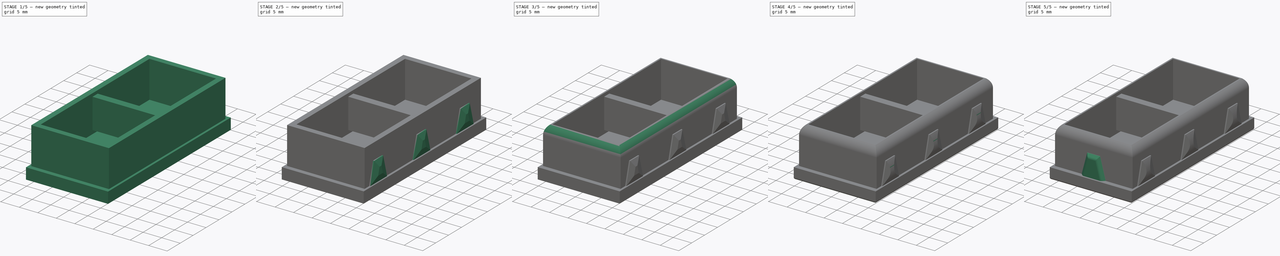
[diagram: build sequence overview — one tinted view per stage of 5, left to right]
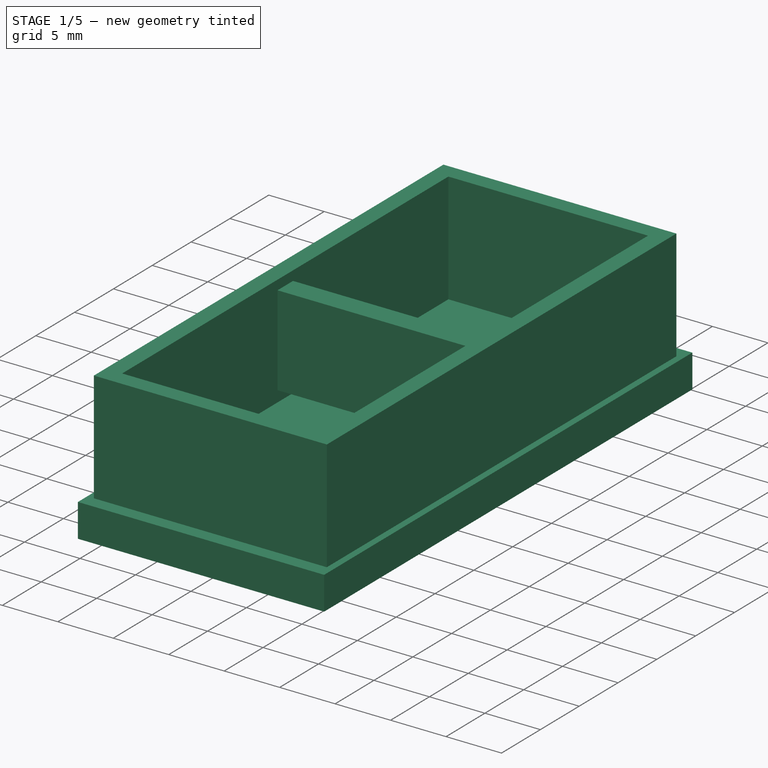
[diagram: stage 1 of 5 — iso view after this stage's code; geometry added in this stage tinted green]
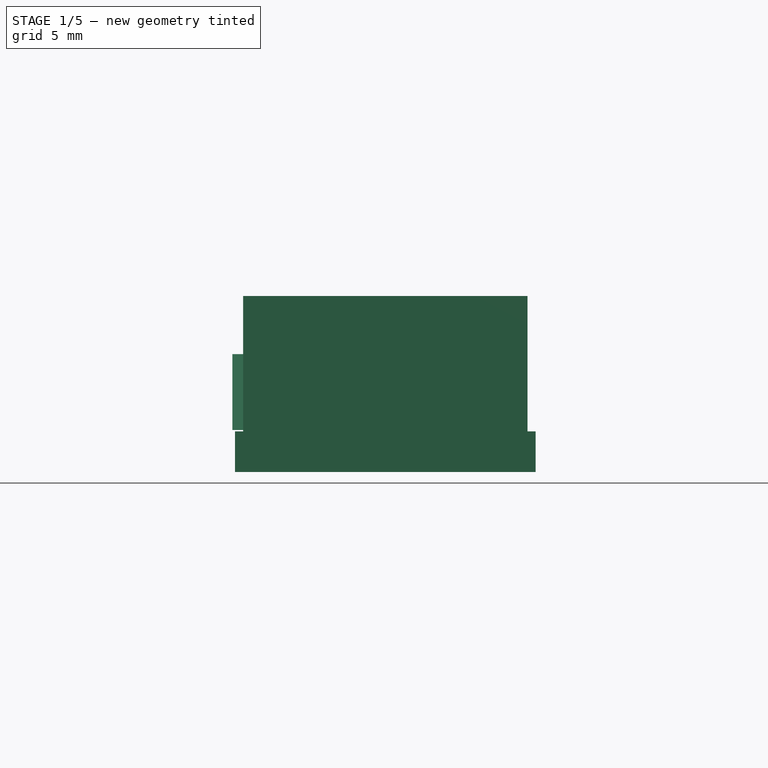
[diagram: stage 1 of 5 — front view after this stage's code; geometry added in this stage tinted green]
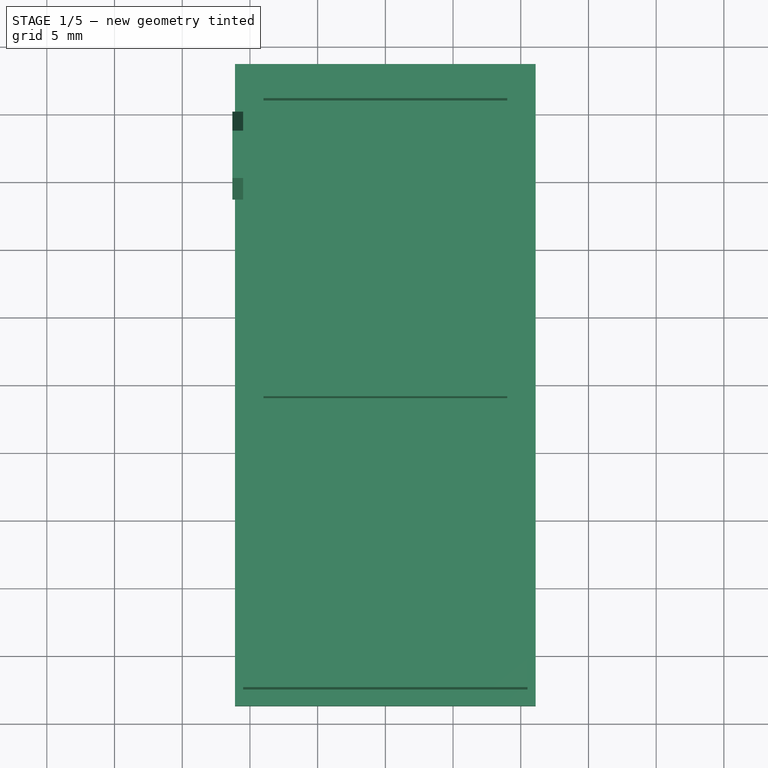
[diagram: stage 1 of 5 — top view after this stage's code; geometry added in this stage tinted green]
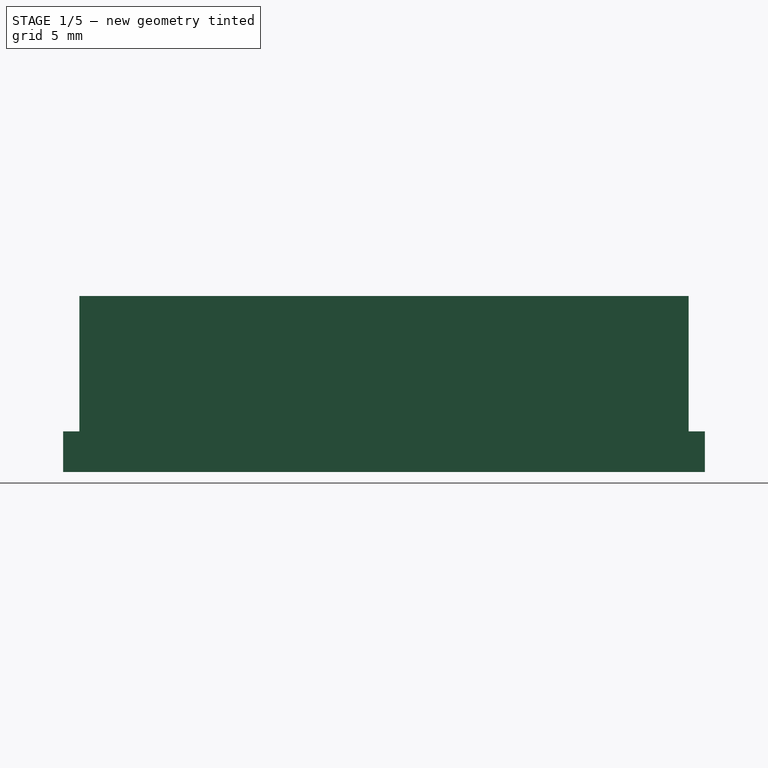
[diagram: stage 1 of 5 — right view after this stage's code; geometry added in this stage tinted green]
FCSTD DOCUMENT  (FreeCAD 0.19R24291 (Git))
Label: Kapak.stl
License: All rights reserved
LicenseURL: http://en.wikipedia.org/wiki/All_rights_reserved
objects: PartDesign::Fillet×8, Sketcher::SketchObject×7, PartDesign::Pad×7, PartDesign::Chamfer×5, PartDesign::LinearPattern×2, PartDesign::Body×1, App::Part×1
note: 50 computed .brp shape members not serialized (recipe doc carries the construction recipe); baked Part::Feature solids carry a one-line shape summary decoded from their .brp

FEATURE [Sketcher::SketchObject] Sketch
  FullyConstrained = false
  MapMode = 5
  Support = -> [XY_Plane001]
  sketch-geometry (8):
    g0: LineSegment StartX=-10.5 StartY=-22.5 StartZ=0 EndX=10.5 EndY=-22.5 EndZ=0
    g1: LineSegment StartX=10.5 StartY=-22.5 StartZ=0 EndX=10.5 EndY=22.5 EndZ=0
    g2: LineSegment StartX=10.5 StartY=22.5 StartZ=0 EndX=-10.5 EndY=22.5 EndZ=0
    g3: LineSegment StartX=-10.5 StartY=22.5 StartZ=0 EndX=-10.5 EndY=-22.5 EndZ=0
    g4: LineSegment StartX=-9 StartY=21 StartZ=0 EndX=-9 EndY=-21 EndZ=0
    g5: LineSegment StartX=-9 StartY=-21 StartZ=0 EndX=9 EndY=-21 EndZ=0
    g6: LineSegment StartX=9 StartY=-21 StartZ=0 EndX=9 EndY=21 EndZ=0
    g7: LineSegment StartX=9 StartY=21 StartZ=0 EndX=-9 EndY=21 EndZ=0
  constraints (23):
    c: Horizontal(g0)
    c: Coincident(g0,g1)
    c: Vertical(g1)
    c: Coincident(g1,g2)
    c: Horizontal(g2)
    c: Coincident(g2,g3)
    c: Coincident(g3,g0)
    c: Vertical(g3)
    c: Vertical(g4)
    c: Coincident(g4,g5)
    c: Coincident(g5,g6)
    c: Vertical(g6)
    c: Coincident(g6,g7)
    c: Coincident(g7,g4)
    c: DistanceY(g6,g1) = 1.5
    c: DistanceY(g-1,g2) = 22.5
    c: DistanceX(g2,g-1) = 10.5
    c: DistanceX(g-1,g1) = 10.5
    c: DistanceY(g0,g-1) = 22.5
    c: Horizontal(g7)
    c: Distance(g4,g3) = 1.5
    c: Distance(g4,g0) = 1.5
    c: Distance(g5,g1) = 1.5
FEATURE [PartDesign::Pad] Pad
  Direction = (1,1,1)
  Length = 10
  Length2 = 100
  Profile = -> Sketch
  Type = 0
FEATURE [Sketcher::SketchObject] Sketch001
  FullyConstrained = true
  MapMode = 5
  Support = -> [XY_Plane001]
  sketch-geometry (4):
    g0: LineSegment StartX=-11.1 StartY=23.7 StartZ=0 EndX=11.1 EndY=23.7 EndZ=0
    g1: LineSegment StartX=11.1 StartY=23.7 StartZ=0 EndX=11.1 EndY=-23.7 EndZ=0
    g2: LineSegment StartX=11.1 StartY=-23.7 StartZ=0 EndX=-11.1 EndY=-23.7 EndZ=0
    g3: LineSegment StartX=-11.1 StartY=-23.7 StartZ=0 EndX=-11.1 EndY=23.7 EndZ=0
  constraints (12):
    c: Coincident(g0,g1)
    c: Coincident(g1,g2)
    c: Coincident(g2,g3)
    c: Coincident(g3,g0)
    c: Horizontal(g0)
    c: Horizontal(g2)
    c: Vertical(g1)
    c: Vertical(g3)
    c: DistanceY(g1,g1) = 47.4
    c: DistanceX(g0,g0) = 22.2
    c: DistanceX(g0,g-1) = 11.1
    c: DistanceY(g-1,g0) = 23.7
FEATURE [PartDesign::Pad] Pad001
  BaseFeature = -> Pad
  Direction = (1,1,1)
  Length = 3
  Length2 = 100
  Profile = -> Sketch001
  Reversed = true
  Type = 0
FEATURE [Sketcher::SketchObject] Sketch002
  AttachmentOffset = pos=(0,0,21) rot=(0,0,1;0rad)
  ExternalGeometry = -> [Pad001]
  FullyConstrained = false
  MapMode = 5
  Placement = pos=(0,-3.6e-15,4.7e-15) rot=(1,0,0;1.5708rad)
  Support = -> [Pad001]
  sketch-geometry (4):
    g0: LineSegment StartX=-9.5 StartY=9.13793 StartZ=0 EndX=9.5 EndY=9.13793 EndZ=0
    g1: LineSegment StartX=9.5 StartY=9.13793 StartZ=0 EndX=9.5 EndY=1 EndZ=0
    g2: LineSegment StartX=9.5 StartY=1 StartZ=0 EndX=-9.5 EndY=1 EndZ=0
    g3: LineSegment StartX=-9.5 StartY=1 StartZ=0 EndX=-9.5 EndY=9.13793 EndZ=0
  constraints (11):
    c: Coincident(g0,g1)
    c: Coincident(g1,g2)
    c: Coincident(g2,g3)
    c: Coincident(g3,g0)
    c: Horizontal(g0)
    c: Horizontal(g2)
    c: Vertical(g1)
    c: Vertical(g3)
    c: Distance(g0,g-3) = 1
    c: Distance(g0,g-5) = 1
    c: Distance(g-1,g2) = 1
FEATURE [PartDesign::Pad] Pad002
  BaseFeature = -> Pad001
  Direction = (1,1,1)
  Length = 2
  Length2 = 100
  Midplane = true
  Profile = -> Sketch002
  Reversed = true
  Type = 0
FEATURE [Sketcher::SketchObject] Sketch003
  FullyConstrained = false
  MapMode = 5
  Placement = pos=(-10.5,0,0) rot=(0.57735,-0.57735,-0.57735;2.0944rad)
  Support = -> [Pad002]
  sketch-geometry (4):
    g0: LineSegment StartX=-20.1796 StartY=0.107333 StartZ=0 EndX=-18.6796 EndY=5.70541 EndZ=0
    g1: LineSegment StartX=-18.6796 StartY=5.70541 StartZ=0 EndX=-15.1796 EndY=5.70541 EndZ=0
    g2: LineSegment StartX=-15.1796 StartY=5.70541 StartZ=0 EndX=-13.6796 EndY=0.107333 EndZ=0
    g3: LineSegment StartX=-13.6796 StartY=0.107333 StartZ=0 EndX=-20.1796 EndY=0.107333 EndZ=0
  constraints (10):
    c: Coincident(g0,g1)
    c: Horizontal(g1)
    c: Coincident(g1,g2)
    c: Coincident(g2,g3)
    c: Coincident(g3,g0)
    c: Horizontal(g3)
    c: Angle(g2) = -1.309
    c: Angle(g0) = 1.309
    c: DistanceX(g3,g3) = 6.5
    c: DistanceX(g1,g1) = 3.5
FEATURE [PartDesign::Pad] Pad003
  BaseFeature = -> Pad002
  Direction = (1,1,1)
  Length = 0.8
  Length2 = 100
  Profile = -> Sketch003
  Type = 0
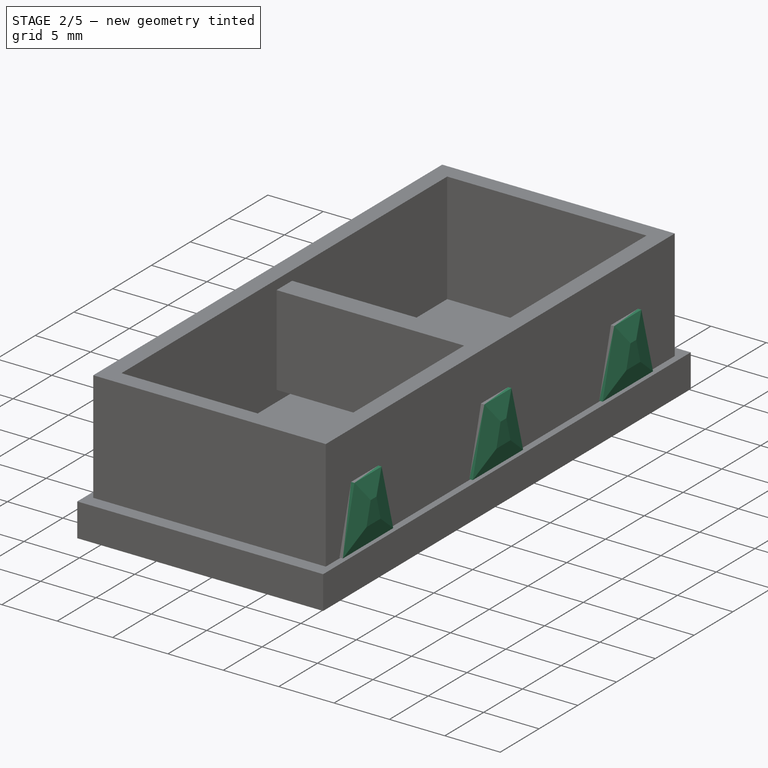
[diagram: stage 2 of 5 — iso view after this stage's code; geometry added in this stage tinted green]
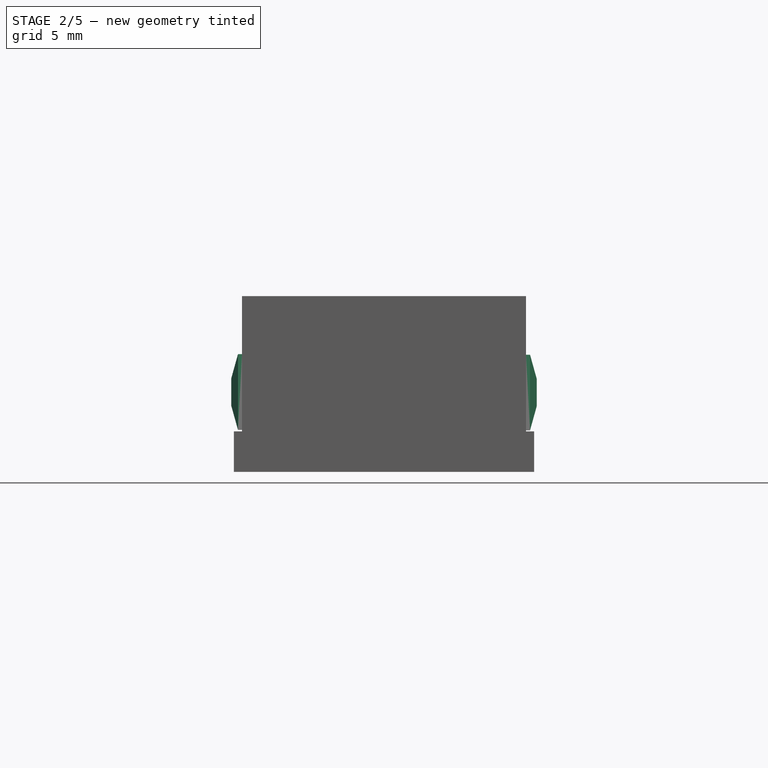
[diagram: stage 2 of 5 — front view after this stage's code; geometry added in this stage tinted green]
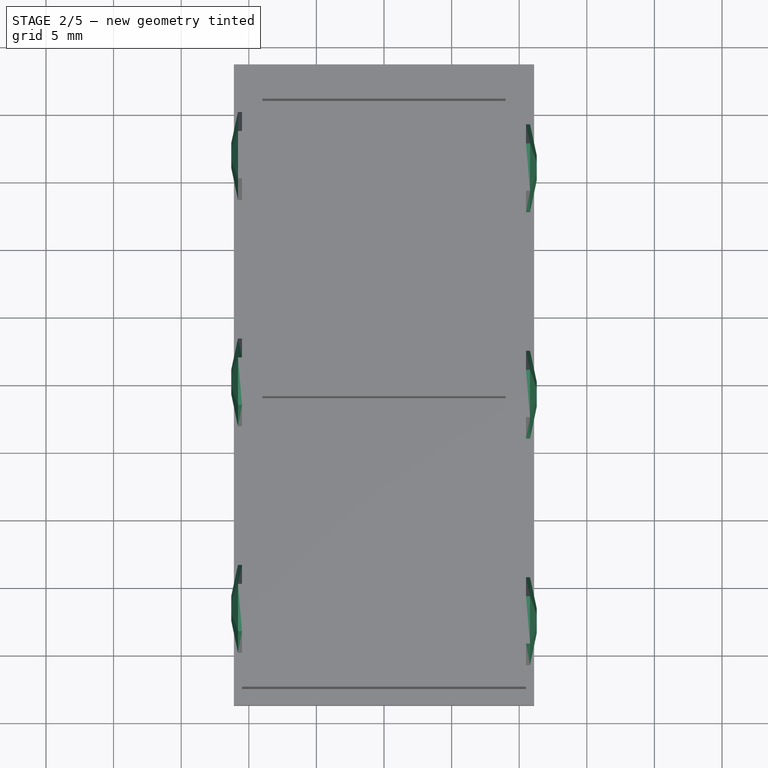
[diagram: stage 2 of 5 — top view after this stage's code; geometry added in this stage tinted green]
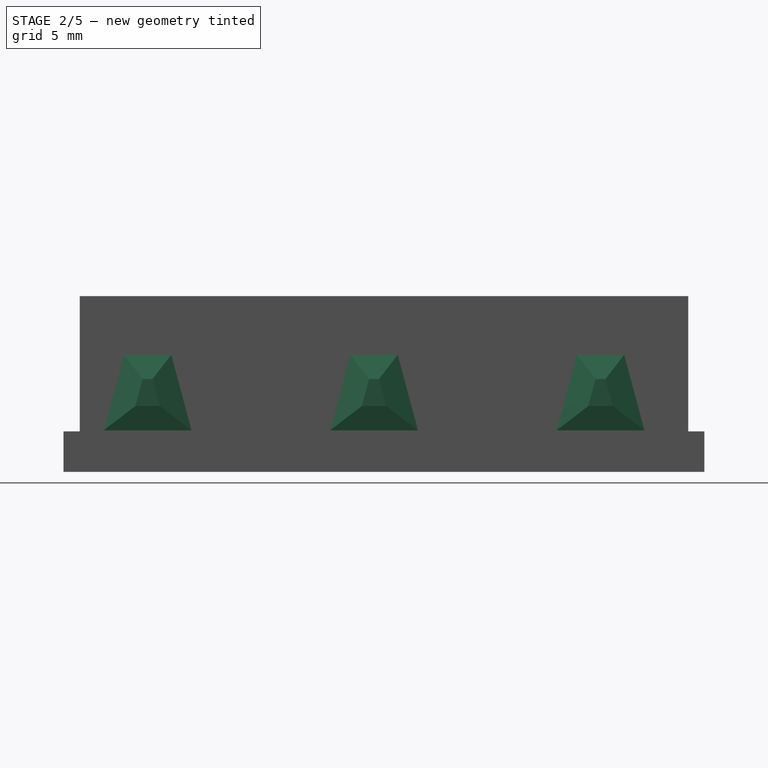
[diagram: stage 2 of 5 — right view after this stage's code; geometry added in this stage tinted green]
FEATURE [PartDesign::LinearPattern] LinearPattern
  BaseFeature = -> Pad003
  Direction = -> Sketch003 [H_Axis]
  Length = 33.5
  Occurrences = 3
  Originals = -> [Pad003]
FEATURE [PartDesign::Chamfer] Chamfer
  Angle = 45
  Base = -> LinearPattern [Edge47,Edge43,Edge48,Edge51,Edge55,Edge56,Edge59,Edge61,Edge63,Edge64,Edge53,Edge45]
  BaseFeature = -> LinearPattern
  ChamferType = 1
  FlipDirection = false
  Size = 0.5
  Size2 = 1.8
  SupportTransform = false
FEATURE [Sketcher::SketchObject] Sketch004
  FullyConstrained = false
  MapMode = 5
  Placement = pos=(10.5,0,0) rot=(0.57735,0.57735,0.57735;2.0944rad)
  Support = -> [Chamfer]
  sketch-geometry (4):
    g0: LineSegment StartX=-20.7344 StartY=0.0686719 StartZ=0 EndX=-19.2344 EndY=5.66675 EndZ=0
    g1: LineSegment StartX=-19.2344 StartY=5.66675 StartZ=0 EndX=-15.7344 EndY=5.66675 EndZ=0
    g2: LineSegment StartX=-15.7344 StartY=5.66675 StartZ=0 EndX=-14.2344 EndY=0.0686719 EndZ=0
    g3: LineSegment StartX=-14.2344 StartY=0.0686719 StartZ=0 EndX=-20.7344 EndY=0.0686719 EndZ=0
  constraints (10):
    c: Coincident(g0,g1)
    c: Horizontal(g1)
    c: Coincident(g1,g2)
    c: Coincident(g2,g3)
    c: Coincident(g3,g0)
    c: Horizontal(g3)
    c: Angle(g2) = -1.309
    c: Angle(g0) = 1.309
    c: DistanceX(g1,g1) = 3.5
    c: DistanceX(g3,g3) = 6.5
FEATURE [PartDesign::Pad] Pad004
  BaseFeature = -> Chamfer
  Direction = (1,1,1)
  Length = 0.8
  Length2 = 100
  Profile = -> Sketch004
  Type = 0
FEATURE [PartDesign::LinearPattern] LinearPattern001
  BaseFeature = -> Pad004
  Direction = -> Sketch004 [H_Axis]
  Length = 33.5
  Occurrences = 3
  Originals = -> [Pad004]
FEATURE [PartDesign::Chamfer] Chamfer001
  Angle = 45
  Base = -> LinearPattern001 [Edge119,Edge123,Edge124,Edge127,Edge131,Edge132,Edge135,Edge137,Edge139,Edge121,Edge129,Edge140]
  BaseFeature = -> LinearPattern001
  ChamferType = 1
  FlipDirection = false
  Size = 0.5
  Size2 = 1.8
  SupportTransform = false
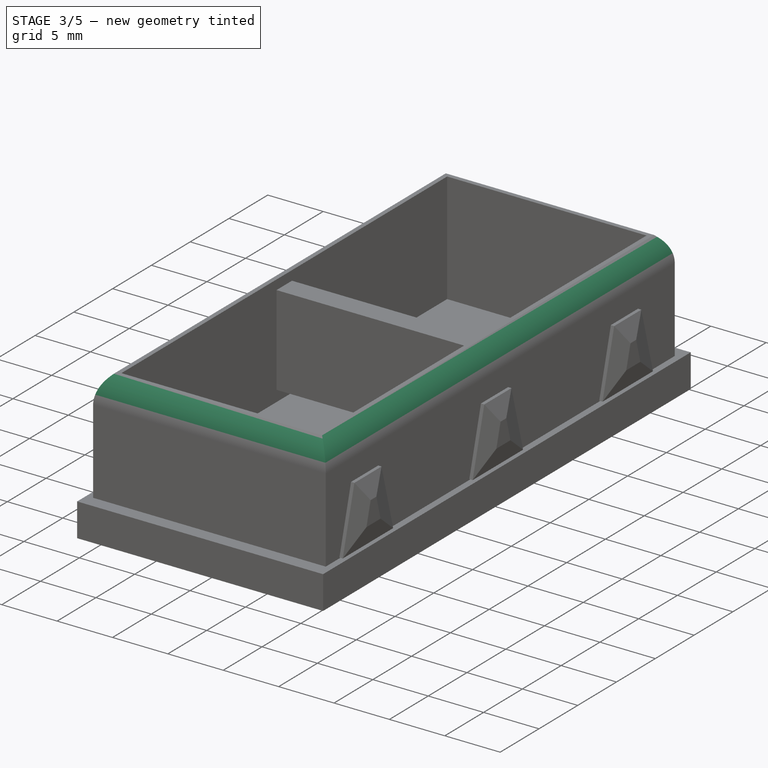
[diagram: stage 3 of 5 — iso view after this stage's code; geometry added in this stage tinted green]
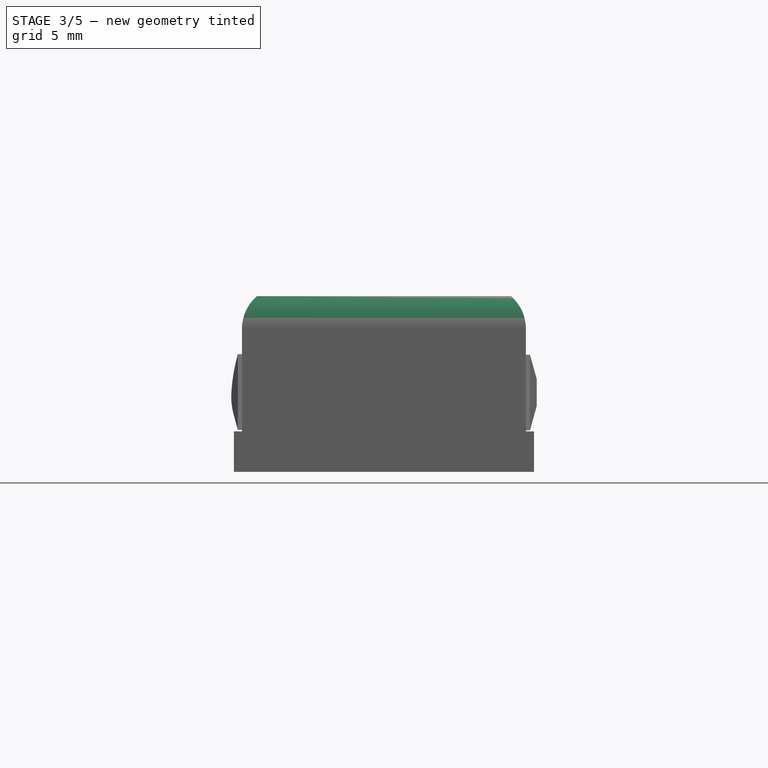
[diagram: stage 3 of 5 — front view after this stage's code; geometry added in this stage tinted green]
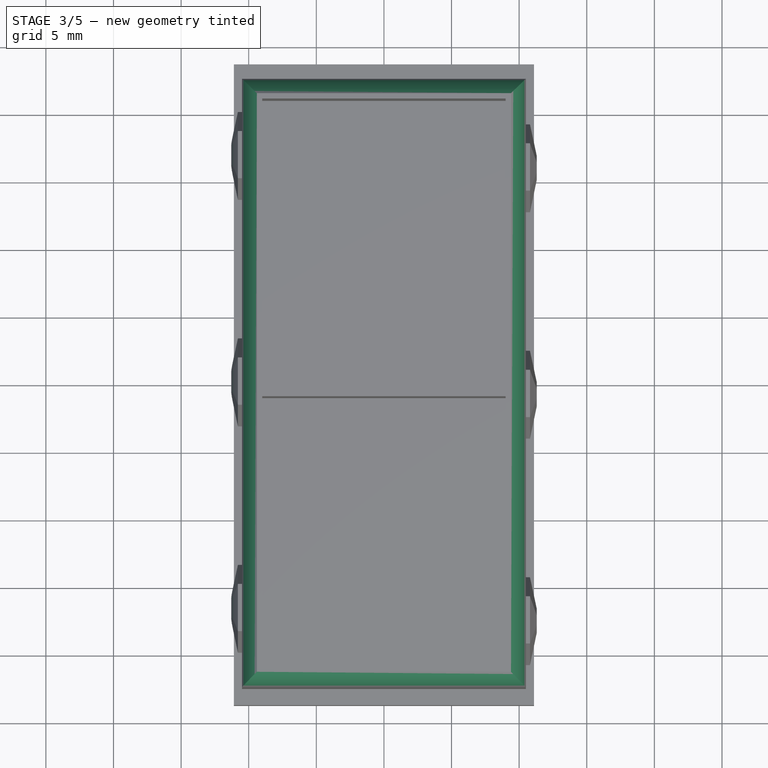
[diagram: stage 3 of 5 — top view after this stage's code; geometry added in this stage tinted green]
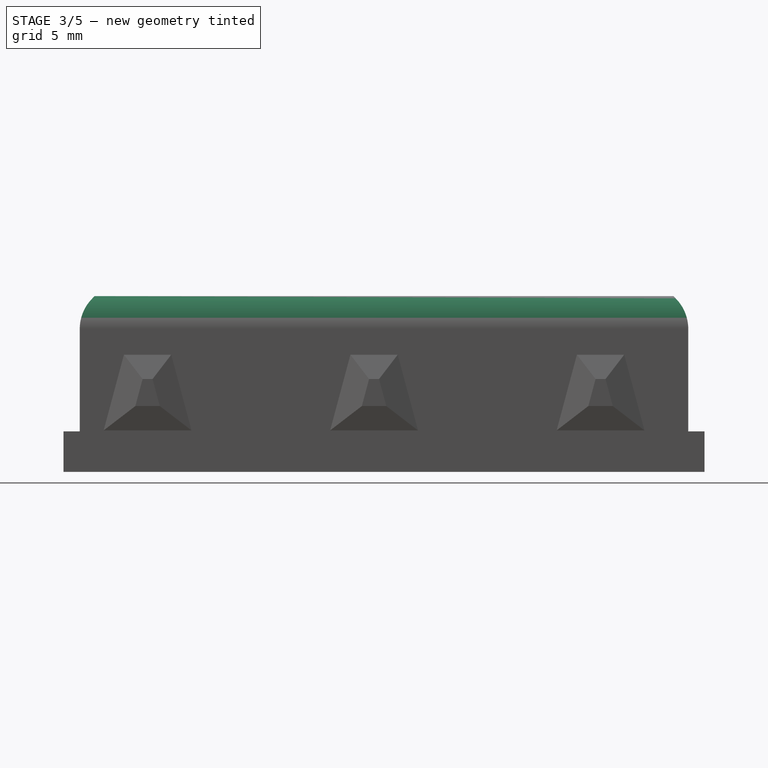
[diagram: stage 3 of 5 — right view after this stage's code; geometry added in this stage tinted green]
FEATURE [PartDesign::Chamfer] Chamfer002
  Angle = 45
  Base = -> Chamfer001 [Edge42,Edge35,Edge43,Edge13]
  BaseFeature = -> Chamfer001
  ChamferType = 2
  FlipDirection = false
  Size = 1.1
  Size2 = 1
  SupportTransform = false
FEATURE [PartDesign::Fillet] Fillet
  Base = -> Chamfer002 [Edge2,Edge29,Edge18,Edge55]
  BaseFeature = -> Chamfer002
  Radius = 3.2
  SupportTransform = false
FEATURE [PartDesign::Fillet] Fillet001
  Base = -> Fillet [Edge154,Edge146,Edge160]
  BaseFeature = -> Fillet
  Radius = 13
  SupportTransform = false
FEATURE [PartDesign::Fillet] Fillet002
  Base = -> Fillet001 [Edge113,Edge99,Edge7]
  BaseFeature = -> Fillet001
  Radius = 5
  SupportTransform = false
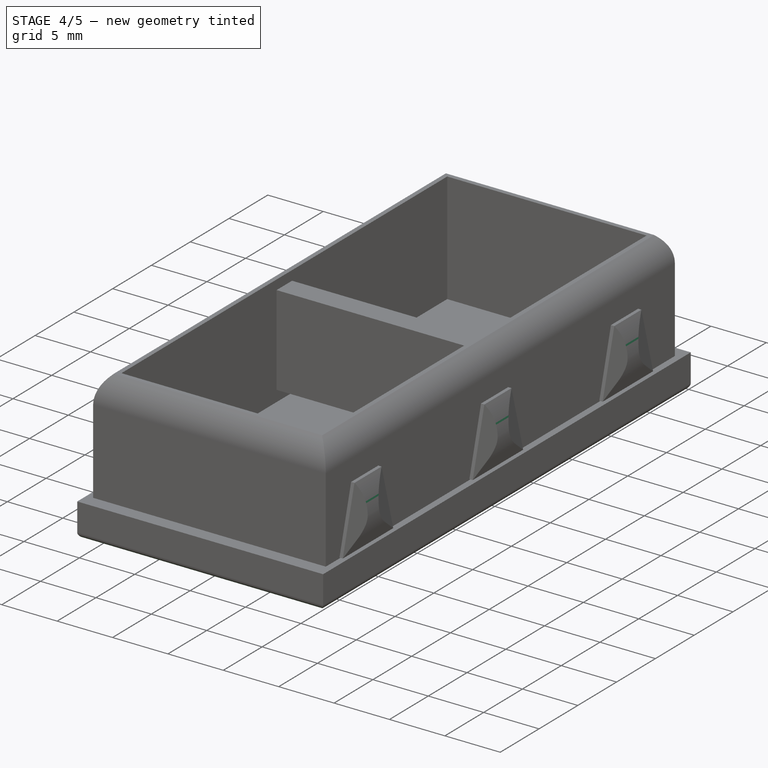
[diagram: stage 4 of 5 — iso view after this stage's code; geometry added in this stage tinted green]
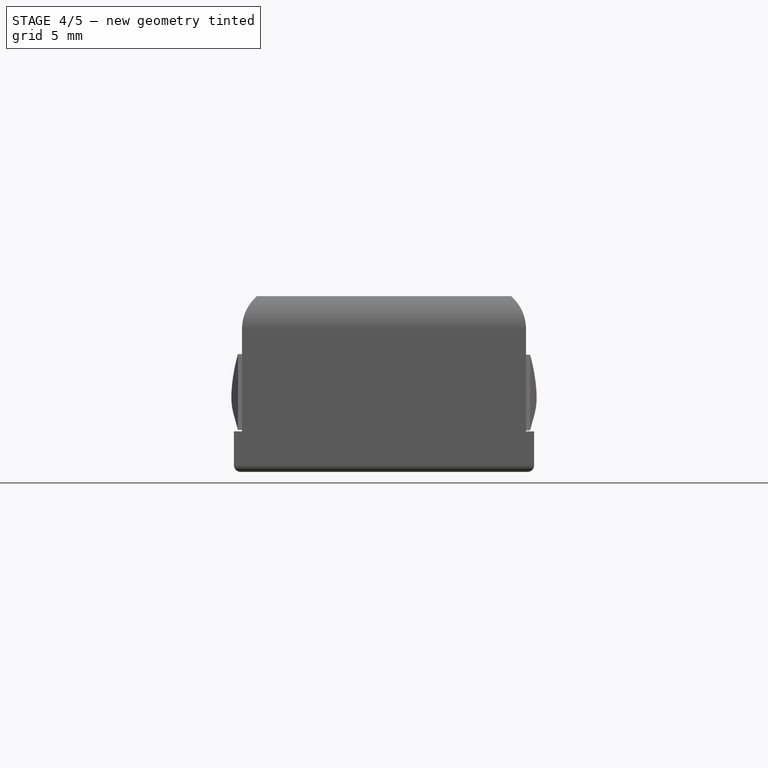
[diagram: stage 4 of 5 — front view after this stage's code; geometry added in this stage tinted green]
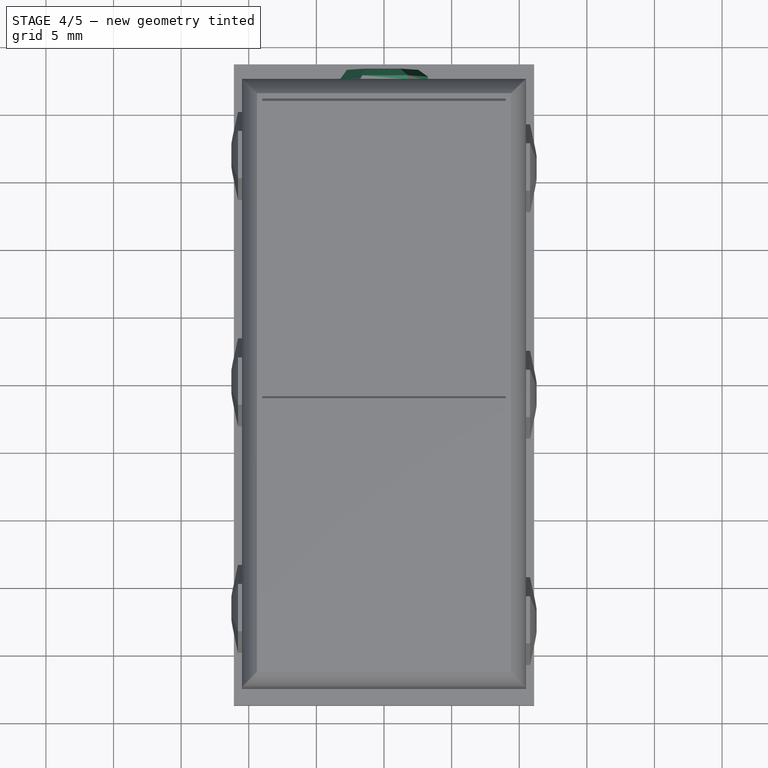
[diagram: stage 4 of 5 — top view after this stage's code; geometry added in this stage tinted green]
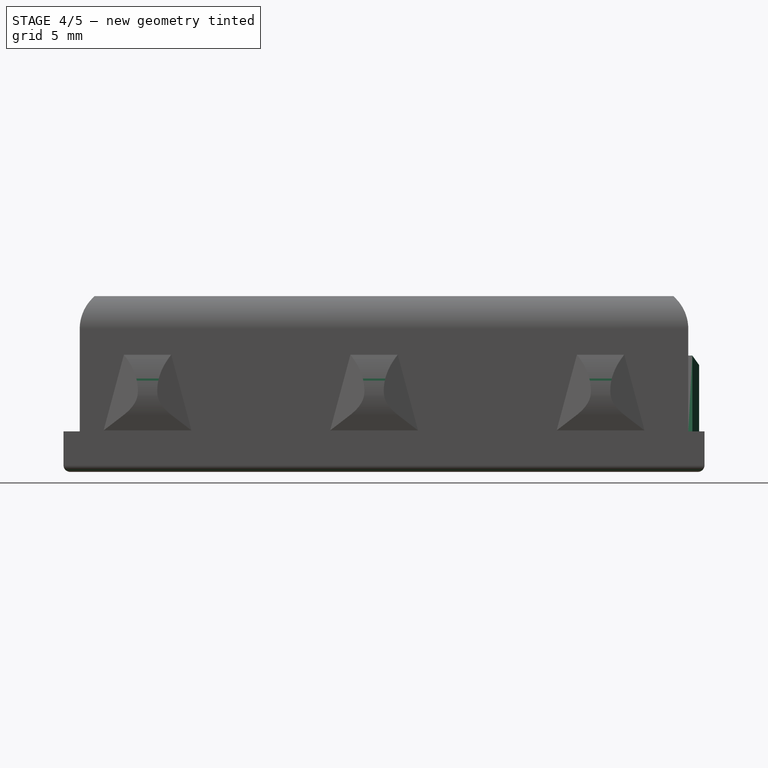
[diagram: stage 4 of 5 — right view after this stage's code; geometry added in this stage tinted green]
FEATURE [PartDesign::Fillet] Fillet003
  Base = -> Fillet002 [Edge155,Edge163,Edge169]
  BaseFeature = -> Fillet002
  Radius = 13
  SupportTransform = false
FEATURE [PartDesign::Fillet] Fillet004
  Base = -> Fillet003 [Edge99,Edge7,Edge113]
  BaseFeature = -> Fillet003
  Radius = 5
  SupportTransform = false
FEATURE [PartDesign::Fillet] Fillet005
  Base = -> Fillet004 [Edge92,Edge88,Edge90,Edge93]
  BaseFeature = -> Fillet004
  Radius = 0.5
  SupportTransform = false
FEATURE [Sketcher::SketchObject] Sketch005
  FullyConstrained = false
  MapMode = 5
  Placement = pos=(0,22.5,0) rot=(0,0.707107,0.707107;3.14159rad)
  Support = -> [Fillet005]
  sketch-geometry (4):
    g0: LineSegment StartX=-3.24679 StartY=5.287e-12 StartZ=0 EndX=-1.75 EndY=5.58611 EndZ=0
    g1: LineSegment StartX=-1.75 StartY=5.58611 StartZ=0 EndX=1.75 EndY=5.61005 EndZ=0
    g2: LineSegment StartX=1.75 StartY=5.61005 StartZ=0 EndX=3.25321 EndY=5.2873e-12 EndZ=0
    g3: LineSegment StartX=3.25321 StartY=5.287e-12 StartZ=0 EndX=-3.24679 EndY=5.287e-12 EndZ=0
  constraints (10):
    c: Coincident(g0,g1)
    c: Coincident(g1,g2)
    c: Coincident(g2,g3)
    c: Coincident(g3,g0)
    c: Horizontal(g3)
    c: Angle(g2) = -1.309
    c: Angle(g0) = 1.309
    c: DistanceX(g1,g1) = 3.5
    c: DistanceX(g3,g3) = 6.5
    c: DistanceX(g0,g-1) = 1.75
FEATURE [PartDesign::Pad] Pad005
  BaseFeature = -> Fillet005
  Direction = (1,1,1)
  Length = 0.8
  Length2 = 100
  Profile = -> Sketch005
  Type = 0
FEATURE [PartDesign::Chamfer] Chamfer003
  Angle = 45
  Base = -> Pad005 [Edge37,Edge38,Edge36]
  BaseFeature = -> Pad005
  ChamferType = 1
  FlipDirection = false
  Size = 0.7
  Size2 = 0.5
  SupportTransform = false
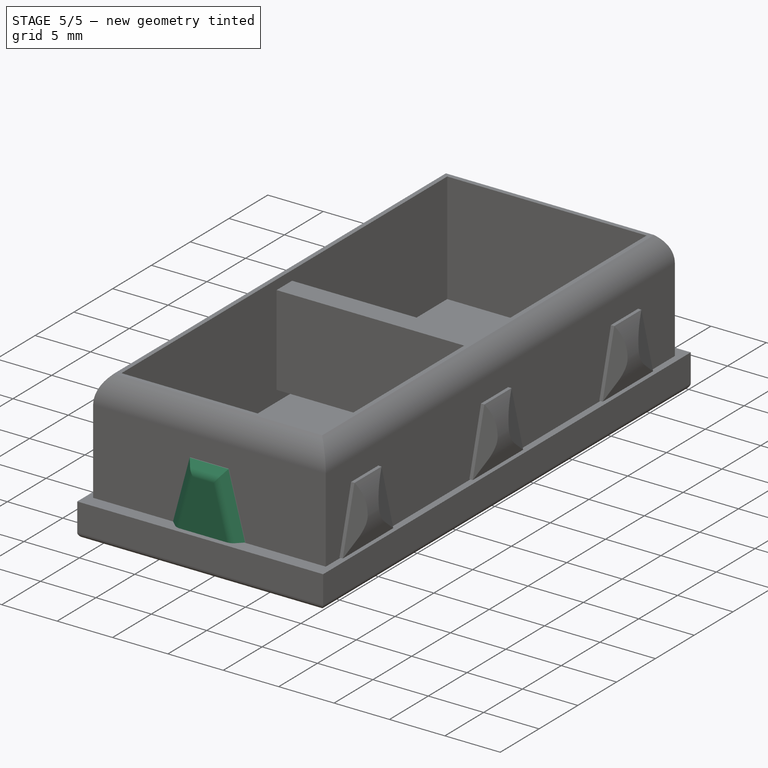
[diagram: stage 5 of 5 — iso view after this stage's code; geometry added in this stage tinted green]
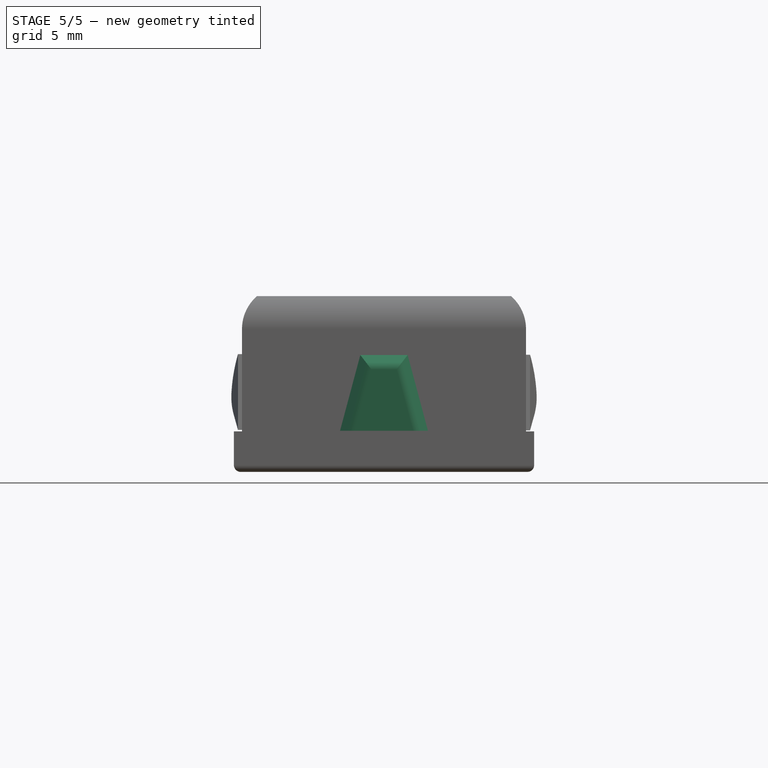
[diagram: stage 5 of 5 — front view after this stage's code; geometry added in this stage tinted green]
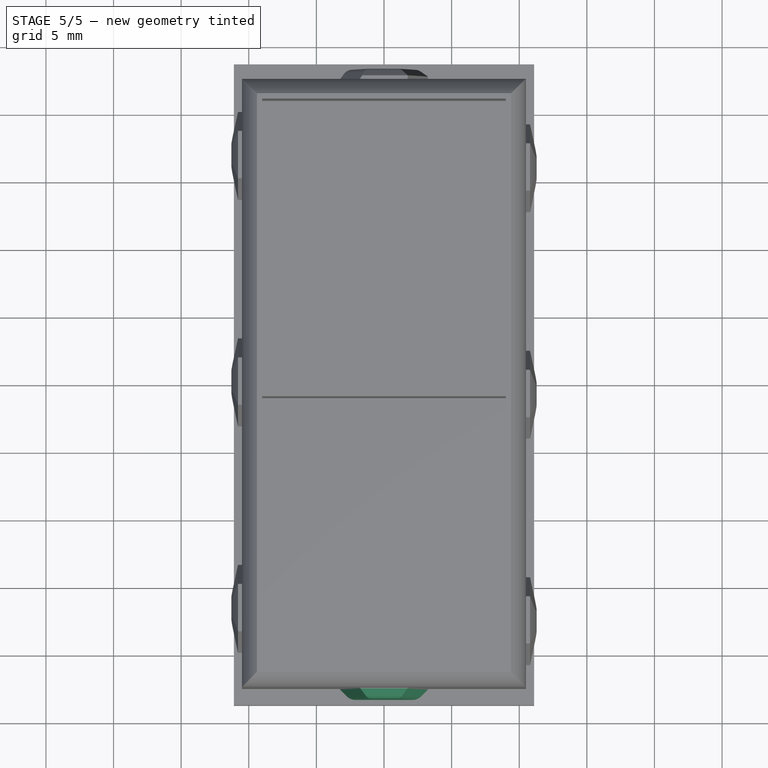
[diagram: stage 5 of 5 — top view after this stage's code; geometry added in this stage tinted green]
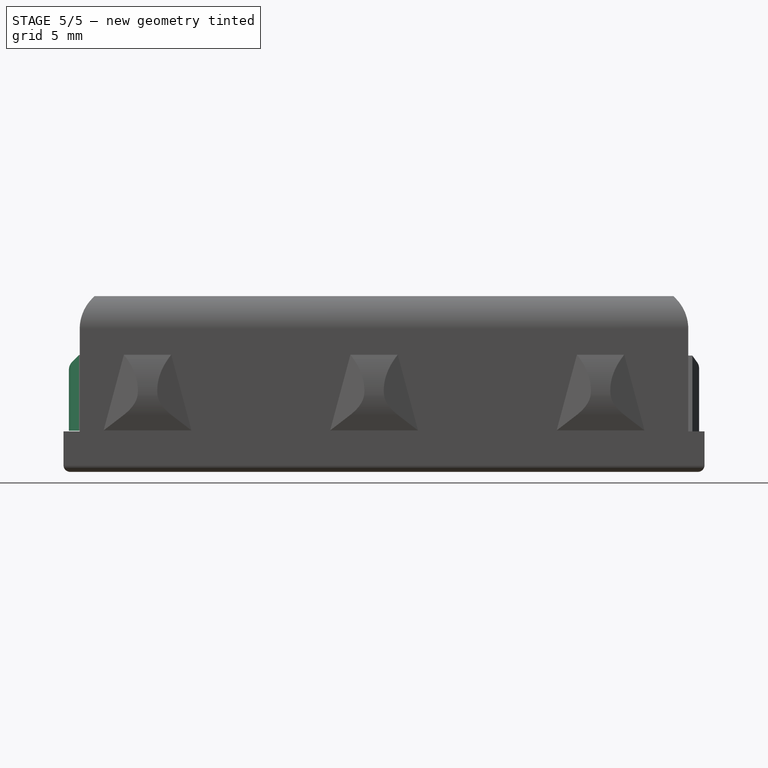
[diagram: stage 5 of 5 — right view after this stage's code; geometry added in this stage tinted green]
FEATURE [PartDesign::Fillet] Fillet006
  Base = -> Chamfer003 [Edge26,Edge27,Edge19]
  BaseFeature = -> Chamfer003
  Radius = 0.75
  SupportTransform = false
FEATURE [Sketcher::SketchObject] Sketch006
  FullyConstrained = false
  MapMode = 5
  Placement = pos=(0,-22.5,0) rot=(1,0,0;1.5708rad)
  Support = -> [Fillet006]
  sketch-geometry (4):
    g0: LineSegment StartX=-3.25 StartY=0.0470824 StartZ=0 EndX=-1.75 EndY=5.64516 EndZ=0
    g1: LineSegment StartX=-1.75 StartY=5.64516 StartZ=0 EndX=1.75 EndY=5.64516 EndZ=0
    g2: LineSegment StartX=1.75 StartY=5.64516 StartZ=0 EndX=3.25 EndY=0.0470824 EndZ=0
    g3: LineSegment StartX=3.25 StartY=0.0470824 StartZ=0 EndX=-3.25 EndY=0.0470824 EndZ=0
  constraints (11):
    c: Coincident(g0,g1)
    c: Horizontal(g1)
    c: Coincident(g1,g2)
    c: Coincident(g2,g3)
    c: Coincident(g3,g0)
    c: Horizontal(g3)
    c: Angle(g2) = -1.309
    c: Angle(g0) = 1.309
    c: DistanceX(g1,g1) = 3.5
    c: DistanceX(g3,g3) = 6.5
    c: DistanceX(g0,g-1) = 1.75
FEATURE [PartDesign::Pad] Pad006
  BaseFeature = -> Fillet006
  Direction = (1,1,1)
  Length = 0.8
  Length2 = 100
  Profile = -> Sketch006
  Type = 0
FEATURE [PartDesign::Chamfer] Chamfer004
  Angle = 45
  Base = -> Pad006 [Edge114,Edge116,Edge118]
  BaseFeature = -> Pad006
  ChamferType = 0
  FlipDirection = false
  Size = 0.75
  Size2 = 1
  SupportTransform = false
FEATURE [PartDesign::Fillet] Fillet007
  Base = -> Chamfer004 [Edge10,Edge23,Edge22]
  BaseFeature = -> Chamfer004
  Radius = 0.8
  SupportTransform = false
FEATURE [PartDesign::Body] Body
  Group = -> [Sketch,Pad,Sketch001,Pad001,Sketch002,Pad002,Sketch003,Pad003,LinearPattern,Chamfer,Sketch004,Pad004,LinearPattern001,Chamfer001,Chamfer002,Fillet,Fillet001,Fillet002,Fillet003,Fillet004,Fillet005,Sketch005,Pad005,Chamfer003,Fillet006,Sketch006,Pad006,Chamfer004,Fillet007]
  Origin = -> Origin001
  Tip = -> Fillet007
FEATURE [App::Part] Part
  Group = -> [Body]
  Origin = -> Origin
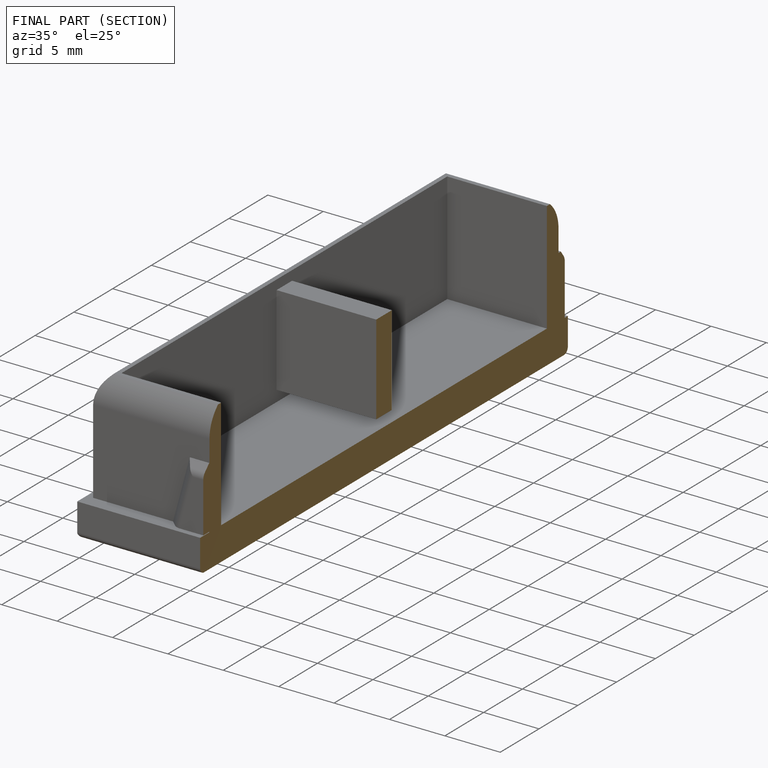
[diagram: finished part — half-section view (interior)]
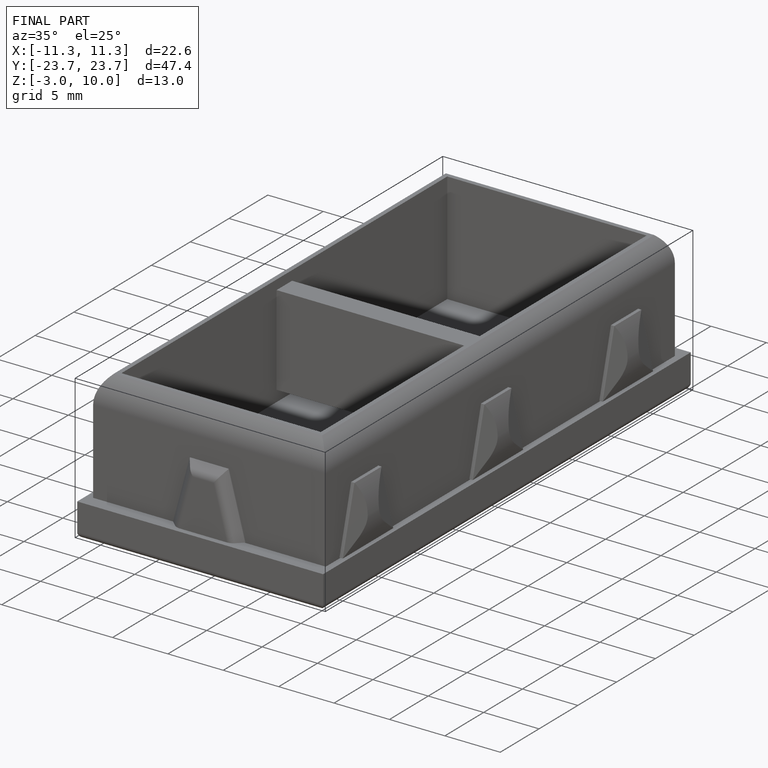
[diagram: finished part — iso view with bounding-box wireframe]
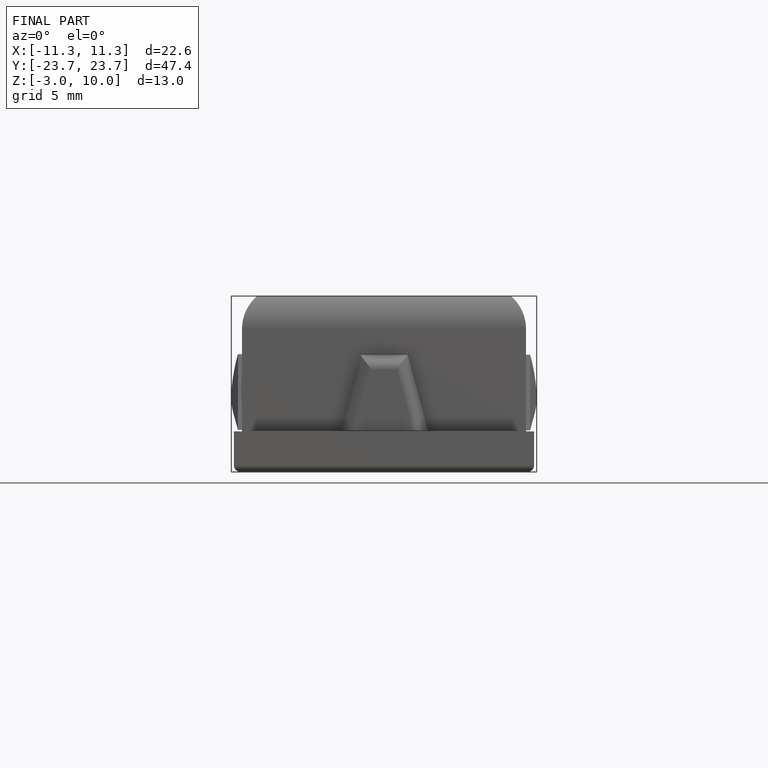
[diagram: finished part — front view with bounding-box wireframe]
